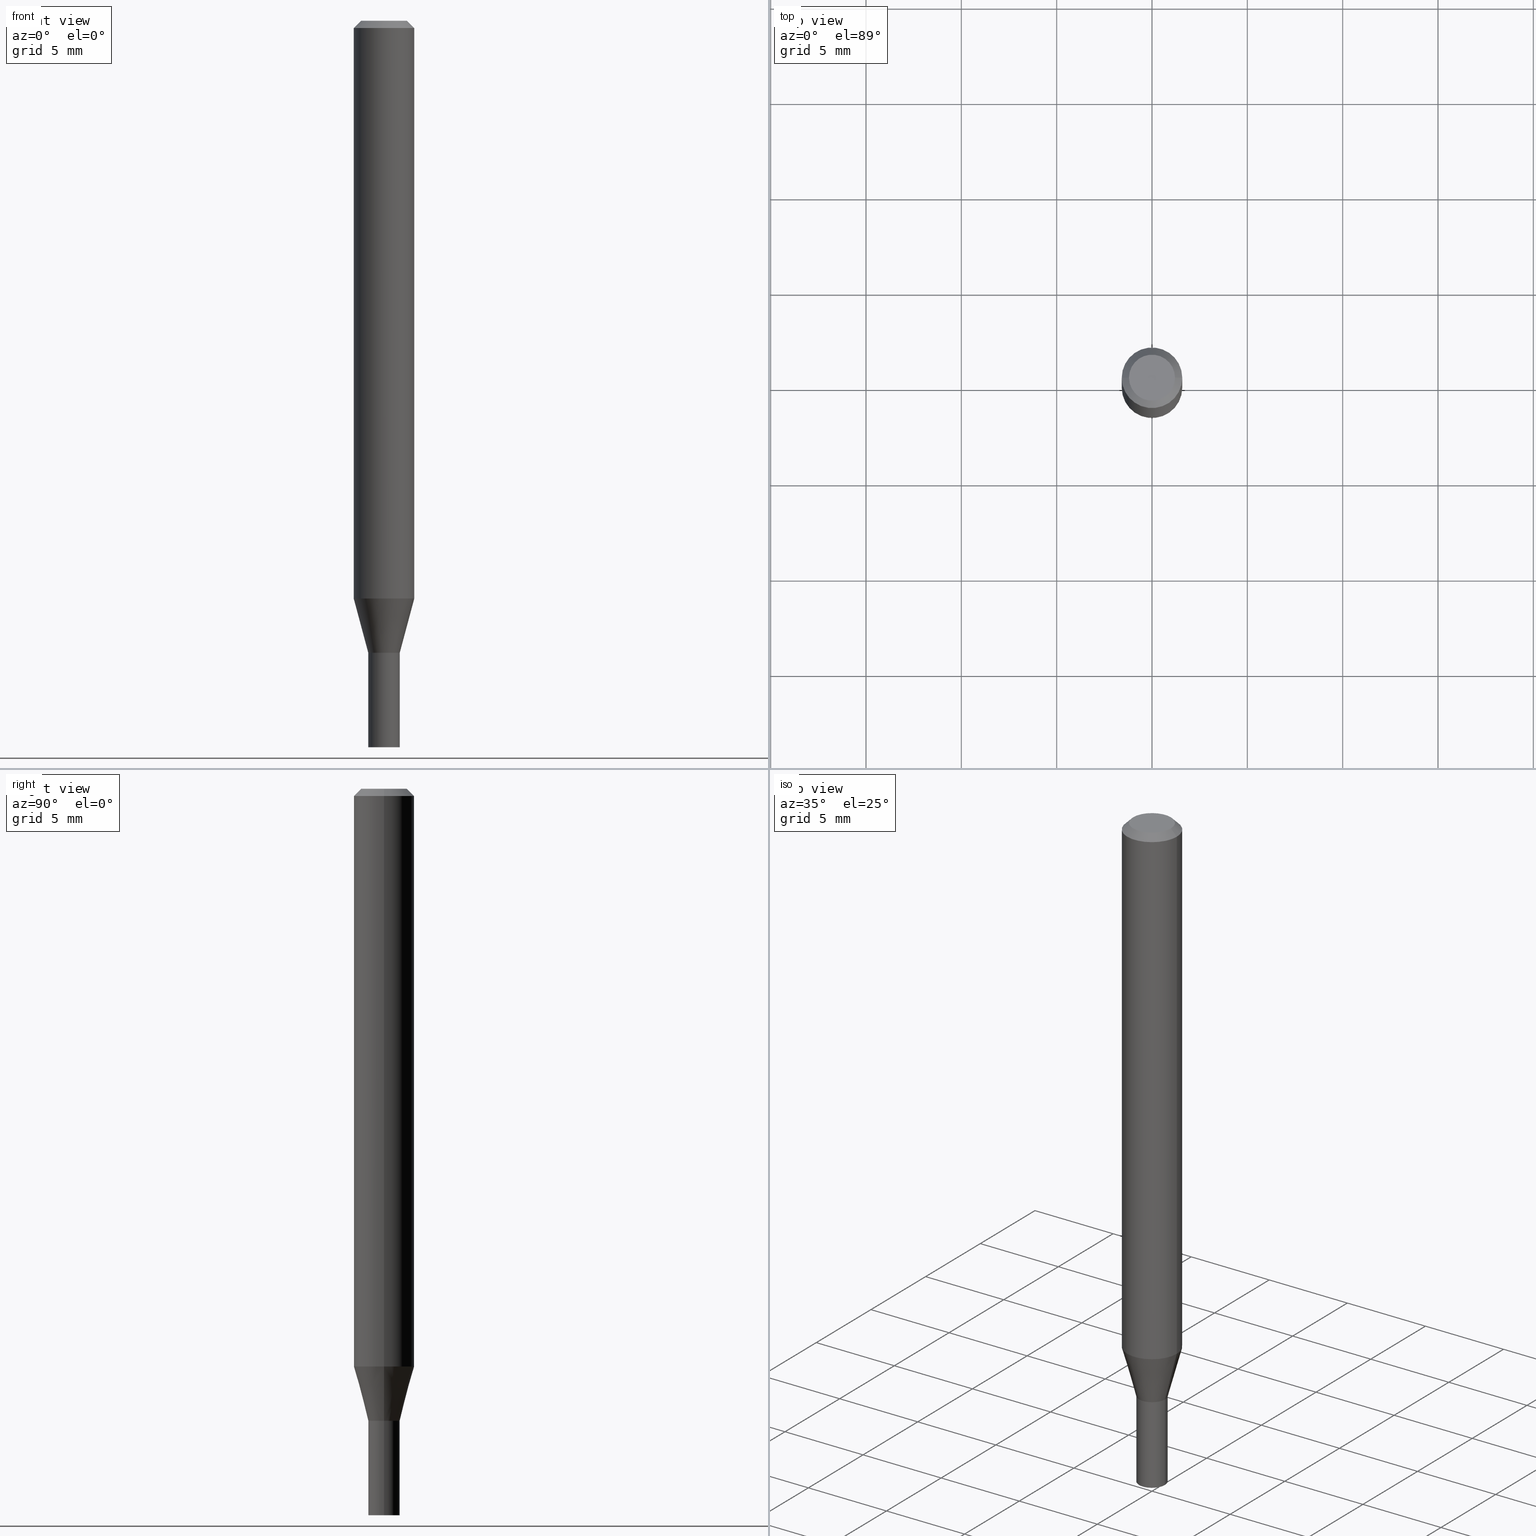
[diagram: canonical four-view strip — front | top / right | iso, engineering-drawing reading convention]
A machine part, canonical four-view strip (front | top / right | iso — engineering-drawing reading convention). The complete STEP part file that produces these views, byte-faithful:
ISO-10303-21;
HEADER;
FILE_DESCRIPTION (( 'STEP AP203' ),
    '1' );
FILE_NAME ('04168.STEP',
    '2024-03-14T17:10:26',
    ( '' ),
    ( '' ),
    'SwSTEP 2.0',
    'SolidWorks 2023',
    '' );
FILE_SCHEMA (( 'CONFIG_CONTROL_DESIGN' ));
ENDSEC;

DATA;
#1 = APPROVAL_STATUS ( 'not_yet_approved' ) ;
#2 = ORIENTED_EDGE ( 'NONE', *, *, #184, .F. ) ;
#3 = ORIENTED_EDGE ( 'NONE', *, *, #453, .F. ) ;
#4 = AXIS2_PLACEMENT_3D ( 'NONE', #66, #348, #244 ) ;
#5 = PERSON_AND_ORGANIZATION ( #230, #219 ) ;
#6 = APPROVAL ( #434, 'UNSPECIFIED' ) ;
#7 = LINE ( 'NONE', #113, #186 ) ;
#8 = ORIENTED_EDGE ( 'NONE', *, *, #188, .T. ) ;
#9 = EDGE_LOOP ( 'NONE', ( #221, #338 ) ) ;
#10 = VERTEX_POINT ( 'NONE', #361 ) ;
#11 = EDGE_CURVE ( 'NONE', #366, #335, #135, .T. ) ;
#12 = CIRCLE ( 'NONE', #288, 0.06250000000000000000 ) ;
#13 = EDGE_CURVE ( 'NONE', #259, #10, #7, .T. ) ;
#14 = VERTEX_POINT ( 'NONE', #154 ) ;
#15 = DIRECTION ( 'NONE',  ( -2.445468806185136597E-29, 3.491481338843145583E-15, 1.000000000000000000 ) ) ;
#16 = ORIENTED_EDGE ( 'NONE', *, *, #295, .T. ) ;
#17 = DIRECTION ( 'NONE',  ( 2.438088387897960049E-29, -3.491481338843145188E-15, -1.000000000000000000 ) ) ;
#18 = ADVANCED_FACE ( 'NONE', ( #293 ), #266, .T. ) ;
#19 = VERTEX_POINT ( 'NONE', #86 ) ;
#20 = ORIENTED_EDGE ( 'NONE', *, *, #131, .F. ) ;
#21 = LINE ( 'NONE', #375, #240 ) ;
#22 = CONICAL_SURFACE ( 'NONE', #80, 0.06250000000000000000, 0.7853981633974401744 ) ;
#23 = DIRECTION ( 'NONE',  ( -2.445468806185136597E-29, 3.491481338843145583E-15, 1.000000000000000000 ) ) ;
#24 = LINE ( 'NONE', #452, #202 ) ;
#25 = DIRECTION ( 'NONE',  ( -2.445468806185136597E-29, 3.491481338843145583E-15, 1.000000000000000000 ) ) ;
#26 = CARTESIAN_POINT ( 'NONE',  ( 3.668203209277705088E-31, -5.237222008264718399E-17, -0.01499999999999999944 ) ) ;
#27 = AXIS2_PLACEMENT_3D ( 'NONE', #54, #129, #273 ) ;
#28 = CARTESIAN_POINT ( 'NONE',  ( -0.03249999999999977907, 2.309263891220309906E-16, -1.598653904332833547E-30 ) ) ;
#29 = DIRECTION ( 'NONE',  ( -1.000000000000000000, 6.982962677686266711E-15, 0.000000000000000000 ) ) ;
#30 = CARTESIAN_POINT ( 'NONE',  ( 3.191336792071602564E-29, -4.556383147190304175E-15, -1.304999999999999938 ) ) ;
#31 = APPROVAL_DATE_TIME ( #350, #36 ) ;
#32 = DIRECTION ( 'NONE',  ( 2.438088387897960049E-29, -3.491481338843145188E-15, -1.000000000000000000 ) ) ;
#33 = PERSON_AND_ORGANIZATION_ROLE ( 'creator' ) ;
#34 = ORIENTED_EDGE ( 'NONE', *, *, #95, .F. ) ;
#35 = EDGE_LOOP ( 'NONE', ( #42, #147, #370, #44 ) ) ;
#36 = APPROVAL ( #1, 'UNSPECIFIED' ) ;
#37 = AXIS2_PLACEMENT_3D ( 'NONE', #339, #307, #132 ) ;
#38 = DIRECTION ( 'NONE',  ( 1.000000000000000000, -6.982962677686267499E-15, 4.852736867747366768E-29 ) ) ;
#39 = LOCAL_TIME ( 13, 10, 26.00000000000000000, #425 ) ;
#40 = EDGE_CURVE ( 'NONE', #118, #182, #21, .T. ) ;
#41 = ORIENTED_EDGE ( 'NONE', *, *, #372, .F. ) ;
#42 = ORIENTED_EDGE ( 'NONE', *, *, #133, .F. ) ;
#43 = EDGE_CURVE ( 'NONE', #356, #19, #12, .T. ) ;
#44 = ORIENTED_EDGE ( 'NONE', *, *, #291, .T. ) ;
#45 = ORIENTED_EDGE ( 'NONE', *, *, #248, .T. ) ;
#46 = ORIENTED_EDGE ( 'NONE', *, *, #402, .T. ) ;
#47 = CARTESIAN_POINT ( 'NONE',  ( 0.000000000000000000, 0.000000000000000000, 0.000000000000000000 ) ) ;
#48 = LOCAL_TIME ( 13, 10, 26.00000000000000000, #422 ) ;
#49 = EDGE_LOOP ( 'NONE', ( #257, #41 ) ) ;
#50 = DIRECTION ( 'NONE',  ( 1.000000000000000000, -6.982962677686266711E-15, 0.000000000000000000 ) ) ;
#51 = CARTESIAN_POINT ( 'NONE',  ( 0.03249999999999991784, -4.783329434215109105E-15, -1.305000000000000160 ) ) ;
#52 = EDGE_LOOP ( 'NONE', ( #302, #292, #325, #3 ) ) ;
#53 = DIRECTION ( 'NONE',  ( 1.000000000000000000, -6.982962677686270655E-15, 0.000000000000000000 ) ) ;
#54 = CARTESIAN_POINT ( 'NONE',  ( 0.000000000000000000, 0.000000000000000000, 0.000000000000000000 ) ) ;
#55 = FACE_OUTER_BOUND ( 'NONE', #49, .T. ) ;
#56 = CONICAL_SURFACE ( 'NONE', #322, 0.03200000000000000067, 0.7853981633974739252 ) ;
#57 = VECTOR ( 'NONE', #71, 39.37007874015748143 ) ;
#58 = DIRECTION ( 'NONE',  ( -2.445468806185136597E-29, 3.491481338843145583E-15, 1.000000000000000000 ) ) ;
#59 = ADVANCED_FACE ( 'NONE', ( #264 ), #445, .T. ) ;
#60 =( LENGTH_UNIT ( ) NAMED_UNIT ( * ) SI_UNIT ( $, .METRE. ) );
#61 = DIRECTION ( 'NONE',  ( 1.000000000000000000, -6.982962677686268288E-15, 4.876176775795936353E-29 ) ) ;
#62 = DIMENSIONAL_EXPONENTS ( 1.000000000000000000, 0.000000000000000000, 0.000000000000000000, 0.000000000000000000, 0.000000000000000000, 0.000000000000000000, 0.000000000000000000 ) ;
#63 = PLANE ( 'NONE',  #191 ) ;
#64 = AXIS2_PLACEMENT_3D ( 'NONE', #443, #203, #192 ) ;
#65 = SECURITY_CLASSIFICATION ( '', '', #107 ) ;
#66 = CARTESIAN_POINT ( 'NONE',  ( 3.191336792071603685E-29, -4.556383147190305752E-15, -1.305000000000000160 ) ) ;
#67 = EDGE_CURVE ( 'NONE', #332, #10, #94, .T. ) ;
#68 = DIRECTION ( 'NONE',  ( -2.445468806185136597E-29, 3.491481338843145583E-15, 1.000000000000000000 ) ) ;
#69 = APPROVAL_ROLE ( '' ) ;
#70 = FACE_OUTER_BOUND ( 'NONE', #194, .T. ) ;
#71 = DIRECTION ( 'NONE',  ( 0.7071067811865656694, -2.468850131082446387E-15, 0.7071067811865294761 ) ) ;
#72 = VECTOR ( 'NONE', #415, 39.37007874015748143 ) ;
#73 = AXIS2_PLACEMENT_3D ( 'NONE', #421, #101, #245 ) ;
#74 = ORIENTED_EDGE ( 'NONE', *, *, #382, .F. ) ;
#75 = DATE_TIME_ROLE ( 'classification_date' ) ;
#76 = ORIENTED_EDGE ( 'NONE', *, *, #382, .T. ) ;
#77 = EDGE_CURVE ( 'NONE', #121, #14, #233, .T. ) ;
#78 = EDGE_CURVE ( 'NONE', #255, #118, #207, .T. ) ;
#79 = APPROVAL_ROLE ( '' ) ;
#80 = AXIS2_PLACEMENT_3D ( 'NONE', #26, #319, #29 ) ;
#81 = ORIENTED_EDGE ( 'NONE', *, *, #95, .T. ) ;
#82 = AXIS2_PLACEMENT_3D ( 'NONE', #464, #109, #250 ) ;
#83 = ORIENTED_EDGE ( 'NONE', *, *, #40, .F. ) ;
#84 = PLANE ( 'NONE',  #462 ) ;
#85 = CARTESIAN_POINT ( 'NONE',  ( 0.03250000000000000111, -5.464168295289522318E-15, -1.500000000000000222 ) ) ;
#86 = CARTESIAN_POINT ( 'NONE',  ( -0.06250000000000000000, -1.664832687532795300E-15, -0.01499999999999999944 ) ) ;
#87 = DIRECTION ( 'NONE',  ( 1.000000000000000000, -6.982962677686271444E-15, 0.000000000000000000 ) ) ;
#88 = EDGE_CURVE ( 'NONE', #182, #294, #405, .T. ) ;
#89 = DIRECTION ( 'NONE',  ( 1.000000000000000000, -6.982962677686258033E-15, 0.000000000000000000 ) ) ;
#90 = DIRECTION ( 'NONE',  ( 0.000000000000000000, 0.000000000000000000, 1.000000000000000000 ) ) ;
#91 = EDGE_CURVE ( 'NONE', #14, #19, #401, .T. ) ;
#92 = DIRECTION ( 'NONE',  ( 1.000000000000000000, -6.982962677686276177E-15, 0.000000000000000000 ) ) ;
#93 = FACE_OUTER_BOUND ( 'NONE', #163, .T. ) ;
#94 = CIRCLE ( 'NONE', #148, 0.03250000000000000111 ) ;
#95 = EDGE_CURVE ( 'NONE', #294, #182, #296, .T. ) ;
#96 = DIRECTION ( 'NONE',  ( -2.445468806185136597E-29, 3.491481338843145583E-15, 1.000000000000000000 ) ) ;
#97 = PERSON_AND_ORGANIZATION ( #230, #219 ) ;
#98 = CARTESIAN_POINT ( 'NONE',  ( 0.03250000000000000111, -4.783329434215109105E-15, -1.305000000000000160 ) ) ;
#99 = APPLICATION_CONTEXT ( 'configuration controlled 3d designs of mechanical parts and assemblies' ) ;
#100 = DIRECTION ( 'NONE',  ( 1.000000000000000000, -6.982962677686265922E-15, 4.876176775795935232E-29 ) ) ;
#101 = DIRECTION ( 'NONE',  ( 2.445468806185136597E-29, -3.491481338843145583E-15, -1.000000000000000000 ) ) ;
#102 = APPROVAL_ROLE ( '' ) ;
#103 = AXIS2_PLACEMENT_3D ( 'NONE', #166, #448, #128 ) ;
#104 = PRODUCT_DEFINITION_FORMATION_WITH_SPECIFIED_SOURCE ( 'ANY', '', #397, .NOT_KNOWN. ) ;
#105 = CARTESIAN_POINT ( 'NONE',  ( 0.04749999999999999362, -4.035134999187574186E-16, 2.469815280770085059E-16 ) ) ;
#106 = CARTESIAN_POINT ( 'NONE',  ( 3.191336792071602564E-29, -4.556383147190304175E-15, -1.304999999999999938 ) ) ;
#107 = SECURITY_CLASSIFICATION_LEVEL ( 'unclassified' ) ;
#108 = EDGE_LOOP ( 'NONE', ( #400, #218, #127, #20 ) ) ;
#109 = DIRECTION ( 'NONE',  ( -2.445468806185136597E-29, 3.491481338843145583E-15, 1.000000000000000000 ) ) ;
#110 = COORDINATED_UNIVERSAL_TIME_OFFSET ( 5, 0, .BEHIND. ) ;
#111 = VECTOR ( 'NONE', #403, 39.37007874015748143 ) ;
#112 = CC_DESIGN_SECURITY_CLASSIFICATION ( #65, ( #104 ) ) ;
#113 = CARTESIAN_POINT ( 'NONE',  ( -0.03250000000000000111, 2.309263891220325683E-16, -1.598653904332844407E-30 ) ) ;
#114 = CALENDAR_DATE ( 2024, 14, 3 ) ;
#115 = ORIENTED_EDGE ( 'NONE', *, *, #43, .T. ) ;
#116 = EDGE_LOOP ( 'NONE', ( #83, #398, #46, #123 ) ) ;
#117 = VERTEX_POINT ( 'NONE', #85 ) ;
#118 = VERTEX_POINT ( 'NONE', #451 ) ;
#119 = DIRECTION ( 'NONE',  ( -1.000000000000000000, 6.982962677686265922E-15, -4.876176775795935793E-29 ) ) ;
#120 = DIRECTION ( 'NONE',  ( -2.445468806185136597E-29, 3.491481338843145583E-15, 1.000000000000000000 ) ) ;
#121 = VERTEX_POINT ( 'NONE', #408 ) ;
#122 = DIRECTION ( 'NONE',  ( 1.000000000000000000, -6.982962677686273810E-15, 0.000000000000000000 ) ) ;
#123 = ORIENTED_EDGE ( 'NONE', *, *, #88, .F. ) ;
#124 = DIRECTION ( 'NONE',  ( 1.000000000000000000, -6.982962677686265922E-15, 4.876176775795935232E-29 ) ) ;
#125 = CC_DESIGN_DATE_AND_TIME_ASSIGNMENT ( #428, #181, ( #389 ) ) ;
#126 = CONICAL_SURFACE ( 'NONE', #354, 0.03200000000000000067, 0.7853981633974739252 ) ;
#127 = ORIENTED_EDGE ( 'NONE', *, *, #130, .T. ) ;
#128 = DIRECTION ( 'NONE',  ( 1.000000000000000000, -6.982962677686258033E-15, 0.000000000000000000 ) ) ;
#129 = DIRECTION ( 'NONE',  ( -2.445468806185136597E-29, 3.491481338843145583E-15, 1.000000000000000000 ) ) ;
#130 = EDGE_CURVE ( 'NONE', #117, #332, #368, .T. ) ;
#131 = EDGE_CURVE ( 'NONE', #10, #332, #387, .T. ) ;
#132 = DIRECTION ( 'NONE',  ( 1.000000000000000000, -6.982962677686271444E-15, 0.000000000000000000 ) ) ;
#133 = EDGE_CURVE ( 'NONE', #335, #356, #272, .T. ) ;
#134 = DIRECTION ( 'NONE',  ( -2.445468806185136597E-29, 3.491481338843145583E-15, 1.000000000000000000 ) ) ;
#135 = CIRCLE ( 'NONE', #386, 0.04749999999999999362 ) ;
#136 = FACE_OUTER_BOUND ( 'NONE', #189, .T. ) ;
#137 = DIRECTION ( 'NONE',  ( -2.445468806185136597E-29, 3.491481338843145583E-15, 1.000000000000000000 ) ) ;
#138 = DIRECTION ( 'NONE',  ( 1.000000000000000000, -6.982962677686265922E-15, 4.876176775795935793E-29 ) ) ;
#139 = FACE_OUTER_BOUND ( 'NONE', #160, .T. ) ;
#140 = PERSON_AND_ORGANIZATION_ROLE ( 'classification_officer' ) ;
#141 = AXIS2_PLACEMENT_3D ( 'NONE', #268, #17, #119 ) ;
#142 = CIRCLE ( 'NONE', #446, 0.03250000000000000111 ) ;
#143 = CYLINDRICAL_SURFACE ( 'NONE', #157, 0.03249999999999977907 ) ;
#144 = FACE_OUTER_BOUND ( 'NONE', #52, .T. ) ;
#145 = EDGE_CURVE ( 'NONE', #427, #14, #377, .T. ) ;
#146 = ADVANCED_FACE ( 'NONE', ( #232 ), #274, .F. ) ;
#147 = ORIENTED_EDGE ( 'NONE', *, *, #11, .F. ) ;
#148 = AXIS2_PLACEMENT_3D ( 'NONE', #169, #23, #89 ) ;
#149 = CIRCLE ( 'NONE', #159, 0.03250000000000000111 ) ;
#150 = DIRECTION ( 'NONE',  ( -2.445468806185136597E-29, 3.491481338843145583E-15, 1.000000000000000000 ) ) ;
#151 = COORDINATED_UNIVERSAL_TIME_OFFSET ( 5, 0, .BEHIND. ) ;
#152 = ADVANCED_FACE ( 'NONE', ( #55 ), #407, .F. ) ;
#153 = ORIENTED_EDGE ( 'NONE', *, *, #402, .F. ) ;
#154 = CARTESIAN_POINT ( 'NONE',  ( -0.06250000000000000000, -3.721382364833005349E-15, -1.193038475772933760 ) ) ;
#155 = ORIENTED_EDGE ( 'NONE', *, *, #91, .F. ) ;
#156 = EDGE_CURVE ( 'NONE', #436, #427, #167, .T. ) ;
#157 = AXIS2_PLACEMENT_3D ( 'NONE', #313, #351, #61 ) ;
#158 = ORIENTED_EDGE ( 'NONE', *, *, #13, .T. ) ;
#159 = AXIS2_PLACEMENT_3D ( 'NONE', #171, #239, #317 ) ;
#160 = EDGE_LOOP ( 'NONE', ( #267, #165, #115, #254 ) ) ;
#161 = CARTESIAN_POINT ( 'NONE',  ( 0.03250000000000000111, -2.269462870248036484E-16, 1.584757452133678993E-30 ) ) ;
#162 = ADVANCED_FACE ( 'NONE', ( #381 ), #84, .F. ) ;
#163 = EDGE_LOOP ( 'NONE', ( #155, #45, #365, #249 ) ) ;
#164 = CARTESIAN_POINT ( 'NONE',  ( 3.191336792071603685E-29, -4.556383147190305752E-15, -1.305000000000000160 ) ) ;
#165 = ORIENTED_EDGE ( 'NONE', *, *, #133, .T. ) ;
#166 = CARTESIAN_POINT ( 'NONE',  ( 3.191336792071603685E-29, -4.556383147190305752E-15, -1.305000000000000160 ) ) ;
#167 = CIRCLE ( 'NONE', #456, 0.03249999999999991784 ) ;
#168 = CC_DESIGN_APPROVAL ( #6, ( #65 ) ) ;
#169 = CARTESIAN_POINT ( 'NONE',  ( 3.191336792071603685E-29, -4.556383147190305752E-15, -1.305000000000000160 ) ) ;
#170 = CARTESIAN_POINT ( 'NONE',  ( -0.03249999999999991784, -4.325456758068273381E-15, -1.305000000000000160 ) ) ;
#171 = CARTESIAN_POINT ( 'NONE',  ( 3.668203209277704895E-29, -5.237222008264718177E-15, -1.500000000000000222 ) ) ;
#172 = CLOSED_SHELL ( 'NONE', ( #290, #152, #59, #162 ) ) ;
#173 = AXIS2_PLACEMENT_3D ( 'NONE', #390, #96, #100 ) ;
#174 = AXIS2_PLACEMENT_3D ( 'NONE', #459, #68, #280 ) ;
#175 = CARTESIAN_POINT ( 'NONE',  ( 0.000000000000000000, 0.000000000000000000, 0.000000000000000000 ) ) ;
#176 = DIRECTION ( 'NONE',  ( -2.445468806185136597E-29, 3.491481338843145583E-15, 1.000000000000000000 ) ) ;
#177 = FACE_OUTER_BOUND ( 'NONE', #330, .T. ) ;
#178 = ADVANCED_FACE ( 'NONE', ( #321 ), #22, .T. ) ;
#179 = LOCAL_TIME ( 13, 10, 26.00000000000000000, #327 ) ;
#180 = LINE ( 'NONE', #323, #241 ) ;
#181 = DATE_TIME_ROLE ( 'creation_date' ) ;
#182 = VERTEX_POINT ( 'NONE', #392 ) ;
#183 = PERSON_AND_ORGANIZATION ( #230, #219 ) ;
#184 = EDGE_CURVE ( 'NONE', #427, #182, #209, .T. ) ;
#185 = CALENDAR_DATE ( 2024, 14, 3 ) ;
#186 = VECTOR ( 'NONE', #359, 39.37007874015748143 ) ;
#187 = CLOSED_SHELL ( 'NONE', ( #238, #413, #424, #394, #362, #18, #466, #178, #146, #223, #208, #229 ) ) ;
#188 = EDGE_CURVE ( 'NONE', #436, #294, #461, .T. ) ;
#189 = EDGE_LOOP ( 'NONE', ( #367, #435, #226, #299 ) ) ;
#190 = ORIENTED_EDGE ( 'NONE', *, *, #11, .T. ) ;
#191 = AXIS2_PLACEMENT_3D ( 'NONE', #106, #460, #138 ) ;
#192 = DIRECTION ( 'NONE',  ( 1.000000000000000000, -6.982962677686273810E-15, 0.000000000000000000 ) ) ;
#193 = APPROVAL_PERSON_ORGANIZATION ( #212, #36, #79 ) ;
#194 = EDGE_LOOP ( 'NONE', ( #298, #300 ) ) ;
#195 = DIRECTION ( 'NONE',  ( -2.445468806185136597E-29, 3.491481338843145583E-15, 1.000000000000000000 ) ) ;
#196 = CARTESIAN_POINT ( 'NONE',  ( 0.000000000000000000, 0.000000000000000000, 0.000000000000000000 ) ) ;
#197 = ORIENTED_EDGE ( 'NONE', *, *, #429, .T. ) ;
#198 = DIRECTION ( 'NONE',  ( -0.7071067811865656694, 7.493145998870420424E-15, 0.7071067811865294761 ) ) ;
#199 = CARTESIAN_POINT ( 'NONE',  ( 0.06250000000000000000, -4.811533449433679005E-16, -0.01499999999999999944 ) ) ;
#200 = AXIS2_PLACEMENT_3D ( 'NONE', #222, #439, #53 ) ;
#201 =( NAMED_UNIT ( * ) PLANE_ANGLE_UNIT ( ) SI_UNIT ( $, .RADIAN. ) );
#202 = VECTOR ( 'NONE', #411, 39.37007874015748854 ) ;
#203 = DIRECTION ( 'NONE',  ( -2.445468806185136597E-29, 3.491481338843145583E-15, 1.000000000000000000 ) ) ;
#204 =( CONVERSION_BASED_UNIT ( 'INCH', #225 ) LENGTH_UNIT ( ) NAMED_UNIT ( #62 ) );
#205 = CARTESIAN_POINT ( 'NONE',  ( 2.269462870248355479E-16, 0.03249999999999544226, -1.305000000000000160 ) ) ;
#206 = DIRECTION ( 'NONE',  ( -1.000000000000000000, 6.982962677686265922E-15, -4.876176775795935793E-29 ) ) ;
#207 = CIRCLE ( 'NONE', #37, 0.03200000000000000067 ) ;
#208 = ADVANCED_FACE ( 'NONE', ( #278 ), #56, .T. ) ;
#209 = LINE ( 'NONE', #28, #72 ) ;
#210 = DIRECTION ( 'NONE',  ( -2.445468806185136597E-29, 3.491481338843145583E-15, 1.000000000000000000 ) ) ;
#211 = DIRECTION ( 'NONE',  ( -2.445468806185136877E-29, 3.491481338843145188E-15, 1.000000000000000000 ) ) ;
#212 = PERSON_AND_ORGANIZATION ( #230, #219 ) ;
#213 = VECTOR ( 'NONE', #211, 39.37007874015748143 ) ;
#214 = CONICAL_SURFACE ( 'NONE', #4, 0.03249999999999991784, 0.2617993877991499074 ) ;
#215 = ORIENTED_EDGE ( 'NONE', *, *, #156, .F. ) ;
#216 = PERSON_AND_ORGANIZATION ( #230, #219 ) ;
#217 = ORIENTED_EDGE ( 'NONE', *, *, #67, .F. ) ;
#218 = ORIENTED_EDGE ( 'NONE', *, *, #372, .T. ) ;
#219 = ORGANIZATION ( 'UNSPECIFIED', 'UNSPECIFIED', '' ) ;
#220 = ORIENTED_EDGE ( 'NONE', *, *, #145, .F. ) ;
#221 = ORIENTED_EDGE ( 'NONE', *, *, #67, .T. ) ;
#222 = CARTESIAN_POINT ( 'NONE',  ( 2.917538377081371069E-29, -4.165471574683068754E-15, -1.193038475772933760 ) ) ;
#223 = ADVANCED_FACE ( 'NONE', ( #70 ), #63, .F. ) ;
#224 = DIRECTION ( 'NONE',  ( -0.2588190451025211836, 5.211531920934547886E-15, 0.9659258262890679791 ) ) ;
#225 = LENGTH_MEASURE_WITH_UNIT ( LENGTH_MEASURE( 0.02539999999999999897 ), #60 );
#226 = ORIENTED_EDGE ( 'NONE', *, *, #88, .T. ) ;
#227 = APPLICATION_CONTEXT ( 'configuration controlled 3d designs of mechanical parts and assemblies' ) ;
#228 = CARTESIAN_POINT ( 'NONE',  ( -0.06250000000000000000, 4.440892098500626162E-16, -3.074334431409316114E-30 ) ) ;
#229 = ADVANCED_FACE ( 'NONE', ( #177 ), #143, .F. ) ;
#230 = PERSON ( 'UNSPECIFIED', 'UNSPECIFIED', 'UNSPECIFIED', ('UNSPECIFIED'), ('UNSPECIFIED'), ('UNSPECIFIED') ) ;
#231 = PERSON_AND_ORGANIZATION ( #230, #219 ) ;
#232 = FACE_OUTER_BOUND ( 'NONE', #447, .T. ) ;
#233 = CIRCLE ( 'NONE', #200, 0.06250000000000000000 ) ;
#234 = DESIGN_CONTEXT ( 'detailed design', #99, 'design' ) ;
#235 = DIRECTION ( 'NONE',  ( -2.445468806185136597E-29, 3.491481338843145583E-15, 1.000000000000000000 ) ) ;
#236 = APPROVAL_STATUS ( 'not_yet_approved' ) ;
#237 = CARTESIAN_POINT ( 'NONE',  ( 0.03249999999999964723, -4.781583693545685235E-15, -1.304500000000000215 ) ) ;
#238 = ADVANCED_FACE ( 'NONE', ( #136 ), #454, .F. ) ;
#239 = DIRECTION ( 'NONE',  ( -2.445468806185136597E-29, 3.491481338843145583E-15, 1.000000000000000000 ) ) ;
#240 = VECTOR ( 'NONE', #198, 39.37007874015748143 ) ;
#241 = VECTOR ( 'NONE', #465, 39.37007874015748854 ) ;
#242 = CC_DESIGN_APPROVAL ( #328, ( #389 ) ) ;
#243 = PERSON_AND_ORGANIZATION ( #230, #219 ) ;
#244 = DIRECTION ( 'NONE',  ( 1.000000000000000000, -6.982962677686276177E-15, 0.000000000000000000 ) ) ;
#245 = DIRECTION ( 'NONE',  ( -1.000000000000000000, 6.982962677686266711E-15, 0.000000000000000000 ) ) ;
#246 = CARTESIAN_POINT ( 'NONE',  ( -0.03250000000000000111, -4.665876188605479199E-15, -1.500000000000000222 ) ) ;
#247 = SHAPE_DEFINITION_REPRESENTATION ( #261, #326 ) ;
#248 = EDGE_CURVE ( 'NONE', #14, #121, #352, .T. ) ;
#249 = ORIENTED_EDGE ( 'NONE', *, *, #291, .F. ) ;
#250 = DIRECTION ( 'NONE',  ( 1.000000000000000000, -6.982962677686266711E-15, 4.876176775795935793E-29 ) ) ;
#251 = AXIS2_PLACEMENT_3D ( 'NONE', #346, #344, #457 ) ;
#252 = APPROVAL_PERSON_ORGANIZATION ( #5, #6, #102 ) ;
#253 = DATE_AND_TIME ( #358, #48 ) ;
#254 = ORIENTED_EDGE ( 'NONE', *, *, #450, .F. ) ;
#255 = VERTEX_POINT ( 'NONE', #283 ) ;
#256 = VECTOR ( 'NONE', #301, 39.37007874015748854 ) ;
#257 = ORIENTED_EDGE ( 'NONE', *, *, #295, .F. ) ;
#258 = MANIFOLD_SOLID_BREP ( 'Body-Move/Copy2[2]', #187 ) ;
#259 = VERTEX_POINT ( 'NONE', #246 ) ;
#260 = DIRECTION ( 'NONE',  ( -2.438088387897960049E-29, 3.491481338843145188E-15, 1.000000000000000000 ) ) ;
#261 = PRODUCT_DEFINITION_SHAPE ( 'NONE', 'NONE',  #389 ) ;
#262 = MANIFOLD_SOLID_BREP ( 'Body-Move/Copy2[1]', #172 ) ;
#263 = DIRECTION ( 'NONE',  ( 1.000000000000000000, -6.982962677686267499E-15, 4.852736867747366768E-29 ) ) ;
#264 = FACE_OUTER_BOUND ( 'NONE', #108, .T. ) ;
#265 = DIRECTION ( 'NONE',  ( -2.445468806185136877E-29, 3.491481338843145188E-15, 1.000000000000000000 ) ) ;
#266 = CONICAL_SURFACE ( 'NONE', #414, 0.03249999999999991784, 0.2617993877991499074 ) ;
#267 = ORIENTED_EDGE ( 'NONE', *, *, #429, .F. ) ;
#268 = CARTESIAN_POINT ( 'NONE',  ( 3.316907271900976096E-16, 0.04749999999999999362, -4.235459955654642541E-17 ) ) ;
#269 = VECTOR ( 'NONE', #265, 39.37007874015748143 ) ;
#270 = CARTESIAN_POINT ( 'NONE',  ( 3.191336792071602564E-29, -4.556383147190304175E-15, -1.304999999999999938 ) ) ;
#271 = ORIENTED_EDGE ( 'NONE', *, *, #156, .T. ) ;
#272 = LINE ( 'NONE', #199, #256 ) ;
#273 = DIRECTION ( 'NONE',  ( 1.000000000000000000, -6.982962677686266711E-15, 4.876176775795935793E-29 ) ) ;
#274 = PLANE ( 'NONE',  #141 ) ;
#275 = DIRECTION ( 'NONE',  ( 1.000000000000000000, -6.982962677686268288E-15, 4.876176775795936353E-29 ) ) ;
#276 = AXIS2_PLACEMENT_3D ( 'NONE', #175, #134, #275 ) ;
#277 = APPLICATION_PROTOCOL_DEFINITION ( 'international standard', 'config_control_design', 1994, #227 ) ;
#278 = FACE_OUTER_BOUND ( 'NONE', #116, .T. ) ;
#279 = EDGE_LOOP ( 'NONE', ( #444, #287, #34, #153 ) ) ;
#280 = DIRECTION ( 'NONE',  ( 1.000000000000000000, -6.982962677686276177E-15, 0.000000000000000000 ) ) ;
#281 = CARTESIAN_POINT ( 'NONE',  ( 3.668203209277705088E-31, -5.237222008264718399E-17, -0.01499999999999999944 ) ) ;
#282 = AXIS2_PLACEMENT_3D ( 'NONE', #47, #195, #124 ) ;
#283 = CARTESIAN_POINT ( 'NONE',  ( 0.03200000000000000067, -4.779837952876265309E-15, -1.304999999999999938 ) ) ;
#284 = APPROVAL_DATE_TIME ( #355, #328 ) ;
#285 = CYLINDRICAL_SURFACE ( 'NONE', #82, 0.06250000000000000000 ) ;
#286 = PERSON_AND_ORGANIZATION ( #230, #219 ) ;
#287 = ORIENTED_EDGE ( 'NONE', *, *, #40, .T. ) ;
#288 = AXIS2_PLACEMENT_3D ( 'NONE', #371, #58, #50 ) ;
#289 = LOCAL_TIME ( 13, 10, 26.00000000000000000, #151 ) ;
#290 = ADVANCED_FACE ( 'NONE', ( #310 ), #417, .T. ) ;
#291 = EDGE_CURVE ( 'NONE', #19, #356, #314, .T. ) ;
#292 = ORIENTED_EDGE ( 'NONE', *, *, #91, .T. ) ;
#293 = FACE_OUTER_BOUND ( 'NONE', #442, .T. ) ;
#294 = VERTEX_POINT ( 'NONE', #237 ) ;
#295 = EDGE_CURVE ( 'NONE', #117, #259, #149, .T. ) ;
#296 = CIRCLE ( 'NONE', #329, 0.03249999999999964723 ) ;
#297 = CIRCLE ( 'NONE', #174, 0.03249999999999991784 ) ;
#298 = ORIENTED_EDGE ( 'NONE', *, *, #78, .F. ) ;
#299 = ORIENTED_EDGE ( 'NONE', *, *, #188, .F. ) ;
#300 = ORIENTED_EDGE ( 'NONE', *, *, #441, .F. ) ;
#301 = DIRECTION ( 'NONE',  ( 0.7071067811865416886, -7.319954787623233957E-15, -0.7071067811865531239 ) ) ;
#302 = ORIENTED_EDGE ( 'NONE', *, *, #77, .T. ) ;
#303 = CARTESIAN_POINT ( 'NONE',  ( 3.191336792071603685E-29, -4.556383147190305752E-15, -1.305000000000000160 ) ) ;
#304 = VECTOR ( 'NONE', #308, 39.37007874015748143 ) ;
#305 = CIRCLE ( 'NONE', #388, 0.04749999999999999362 ) ;
#306 = EDGE_LOOP ( 'NONE', ( #16, #158, #217, #399 ) ) ;
#307 = DIRECTION ( 'NONE',  ( -2.445468806185136597E-29, 3.491481338843145583E-15, 1.000000000000000000 ) ) ;
#308 = DIRECTION ( 'NONE',  ( -2.445468806185136877E-29, 3.491481338843145188E-15, 1.000000000000000000 ) ) ;
#309 = UNCERTAINTY_MEASURE_WITH_UNIT (LENGTH_MEASURE( 1.000000000000000082E-05 ), #204, 'distance_accuracy_value', 'NONE');
#310 = FACE_OUTER_BOUND ( 'NONE', #306, .T. ) ;
#311 = CYLINDRICAL_SURFACE ( 'NONE', #27, 0.06250000000000000000 ) ;
#312 = CC_DESIGN_PERSON_AND_ORGANIZATION_ASSIGNMENT ( #243, #140, ( #65 ) ) ;
#313 = CARTESIAN_POINT ( 'NONE',  ( 0.000000000000000000, 0.000000000000000000, 0.000000000000000000 ) ) ;
#314 = CIRCLE ( 'NONE', #433, 0.06250000000000000000 ) ;
#315 = CONICAL_SURFACE ( 'NONE', #73, 0.06250000000000000000, 0.7853981633974401744 ) ;
#316 = LINE ( 'NONE', #353, #57 ) ;
#317 = DIRECTION ( 'NONE',  ( 1.000000000000000000, -6.982962677686258033E-15, 0.000000000000000000 ) ) ;
#318 = DIRECTION ( 'NONE',  ( 1.000000000000000000, -6.982962677686271444E-15, 0.000000000000000000 ) ) ;
#319 = DIRECTION ( 'NONE',  ( 2.445468806185136597E-29, -3.491481338843145583E-15, -1.000000000000000000 ) ) ;
#320 = FACE_OUTER_BOUND ( 'NONE', #279, .T. ) ;
#321 = FACE_OUTER_BOUND ( 'NONE', #35, .T. ) ;
#322 = AXIS2_PLACEMENT_3D ( 'NONE', #30, #137, #384 ) ;
#323 = CARTESIAN_POINT ( 'NONE',  ( 0.03249999999999991784, -4.783329434215109105E-15, -1.305000000000000160 ) ) ;
#324 = CALENDAR_DATE ( 2024, 14, 3 ) ;
#325 = ORIENTED_EDGE ( 'NONE', *, *, #43, .F. ) ;
#326 = ADVANCED_BREP_SHAPE_REPRESENTATION ( '04168', ( #262, #258, #347 ), #395 ) ;
#327 = COORDINATED_UNIVERSAL_TIME_OFFSET ( 5, 0, .BEHIND. ) ;
#328 = APPROVAL ( #236, 'UNSPECIFIED' ) ;
#329 = AXIS2_PLACEMENT_3D ( 'NONE', #336, #15, #122 ) ;
#330 = EDGE_LOOP ( 'NONE', ( #2, #215, #8, #81 ) ) ;
#331 = EDGE_LOOP ( 'NONE', ( #271, #378, #438, #74 ) ) ;
#332 = VERTEX_POINT ( 'NONE', #98 ) ;
#333 = AXIS2_PLACEMENT_3D ( 'NONE', #270, #409, #87 ) ;
#334 = DIRECTION ( 'NONE',  ( 1.000000000000000000, -6.982962677686276177E-15, 0.000000000000000000 ) ) ;
#335 = VERTEX_POINT ( 'NONE', #105 ) ;
#336 = CARTESIAN_POINT ( 'NONE',  ( 3.190114057668511444E-29, -4.554637406520884249E-15, -1.304500000000000215 ) ) ;
#337 = CC_DESIGN_PERSON_AND_ORGANIZATION_ASSIGNMENT ( #286, #431, ( #104 ) ) ;
#338 = ORIENTED_EDGE ( 'NONE', *, *, #131, .T. ) ;
#339 = CARTESIAN_POINT ( 'NONE',  ( 3.191336792071602564E-29, -4.556383147190304175E-15, -1.304999999999999938 ) ) ;
#340 = DIRECTION ( 'NONE',  ( -2.445468806185136597E-29, 3.491481338843145583E-15, 1.000000000000000000 ) ) ;
#341 = EDGE_CURVE ( 'NONE', #427, #436, #297, .T. ) ;
#342 = PERSON_AND_ORGANIZATION_ROLE ( 'design_owner' ) ;
#343 = DIRECTION ( 'NONE',  ( 1.000000000000000000, -6.982962677686265922E-15, 4.876176775795935793E-29 ) ) ;
#344 = DIRECTION ( 'NONE',  ( -2.445468806185136597E-29, 3.491481338843145583E-15, 1.000000000000000000 ) ) ;
#345 = DIRECTION ( 'NONE',  ( 1.000000000000000000, 0.000000000000000000, 0.000000000000000000 ) ) ;
#346 = CARTESIAN_POINT ( 'NONE',  ( 2.917538377081371069E-29, -4.165471574683068754E-15, -1.193038475772933760 ) ) ;
#347 = AXIS2_PLACEMENT_3D ( 'NONE', #196, #90, #345 ) ;
#348 = DIRECTION ( 'NONE',  ( -2.445468806185136597E-29, 3.491481338843145583E-15, 1.000000000000000000 ) ) ;
#349 = CARTESIAN_POINT ( 'NONE',  ( -0.04749999999999999362, 3.578768372314215436E-16, 2.469815280770035755E-16 ) ) ;
#350 = DATE_AND_TIME ( #185, #289 ) ;
#351 = DIRECTION ( 'NONE',  ( -2.445468806185136597E-29, 3.491481338843145583E-15, 1.000000000000000000 ) ) ;
#352 = CIRCLE ( 'NONE', #251, 0.06250000000000000000 ) ;
#353 = CARTESIAN_POINT ( 'NONE',  ( 0.03200000000000000067, -4.779837952876265309E-15, -1.304999999999999938 ) ) ;
#354 = AXIS2_PLACEMENT_3D ( 'NONE', #418, #176, #318 ) ;
#355 = DATE_AND_TIME ( #360, #39 ) ;
#356 = VERTEX_POINT ( 'NONE', #419 ) ;
#357 = PRODUCT_RELATED_PRODUCT_CATEGORY ( 'detail', '', ( #397 ) ) ;
#358 = CALENDAR_DATE ( 2024, 14, 3 ) ;
#359 = DIRECTION ( 'NONE',  ( -2.445468806185136877E-29, 3.491481338843145188E-15, 1.000000000000000000 ) ) ;
#360 = CALENDAR_DATE ( 2024, 14, 3 ) ;
#361 = CARTESIAN_POINT ( 'NONE',  ( -0.03250000000000000111, -4.665876188605479199E-15, -1.305000000000000160 ) ) ;
#362 = ADVANCED_FACE ( 'NONE', ( #385 ), #214, .T. ) ;
#363 = AXIS2_PLACEMENT_3D ( 'NONE', #410, #260, #343 ) ;
#364 = APPROVAL_PERSON_ORGANIZATION ( #97, #328, #69 ) ;
#365 = ORIENTED_EDGE ( 'NONE', *, *, #453, .T. ) ;
#366 = VERTEX_POINT ( 'NONE', #349 ) ;
#367 = ORIENTED_EDGE ( 'NONE', *, *, #341, .F. ) ;
#368 = LINE ( 'NONE', #161, #304 ) ;
#369 = CIRCLE ( 'NONE', #333, 0.03200000000000000067 ) ;
#370 = ORIENTED_EDGE ( 'NONE', *, *, #450, .T. ) ;
#371 = CARTESIAN_POINT ( 'NONE',  ( 3.668203209277705088E-31, -5.237222008264718399E-17, -0.01499999999999999944 ) ) ;
#372 = EDGE_CURVE ( 'NONE', #259, #117, #142, .T. ) ;
#373 = CC_DESIGN_PERSON_AND_ORGANIZATION_ASSIGNMENT ( #183, #33, ( #389 ) ) ;
#374 = ORIENTED_EDGE ( 'NONE', *, *, #248, .F. ) ;
#375 = CARTESIAN_POINT ( 'NONE',  ( -0.03200000000000000067, -4.329009471747071913E-15, -1.304999999999999938 ) ) ;
#376 = LINE ( 'NONE', #449, #269 ) ;
#377 = LINE ( 'NONE', #170, #379 ) ;
#378 = ORIENTED_EDGE ( 'NONE', *, *, #145, .T. ) ;
#379 = VECTOR ( 'NONE', #224, 39.37007874015748854 ) ;
#380 = CC_DESIGN_APPROVAL ( #36, ( #104 ) ) ;
#381 = FACE_OUTER_BOUND ( 'NONE', #9, .T. ) ;
#382 = EDGE_CURVE ( 'NONE', #436, #121, #180, .T. ) ;
#383 = DIRECTION ( 'NONE',  ( 1.000000000000000000, -6.982962677686266711E-15, 0.000000000000000000 ) ) ;
#384 = DIRECTION ( 'NONE',  ( 1.000000000000000000, -6.982962677686271444E-15, 0.000000000000000000 ) ) ;
#385 = FACE_OUTER_BOUND ( 'NONE', #331, .T. ) ;
#386 = AXIS2_PLACEMENT_3D ( 'NONE', #432, #150, #38 ) ;
#387 = CIRCLE ( 'NONE', #103, 0.03250000000000000111 ) ;
#388 = AXIS2_PLACEMENT_3D ( 'NONE', #440, #120, #263 ) ;
#389 = PRODUCT_DEFINITION ( 'UNKNOWN', '', #104, #234 ) ;
#390 = CARTESIAN_POINT ( 'NONE',  ( 0.000000000000000000, 0.000000000000000000, 0.000000000000000000 ) ) ;
#391 = APPROVAL_DATE_TIME ( #253, #6 ) ;
#392 = CARTESIAN_POINT ( 'NONE',  ( -0.03249999999999964723, -4.323711017398854244E-15, -1.304500000000000215 ) ) ;
#393 = PERSON_AND_ORGANIZATION_ROLE ( 'creator' ) ;
#394 = ADVANCED_FACE ( 'NONE', ( #144 ), #285, .T. ) ;
#395 =( GEOMETRIC_REPRESENTATION_CONTEXT ( 3 ) GLOBAL_UNCERTAINTY_ASSIGNED_CONTEXT ( ( #309 ) ) GLOBAL_UNIT_ASSIGNED_CONTEXT ( ( #204, #201, #455 ) ) REPRESENTATION_CONTEXT ( 'NONE', 'WORKASPACE' ) );
#396 = DATE_AND_TIME ( #114, #463 ) ;
#397 = PRODUCT ( '04168', '04168', '', ( #416 ) ) ;
#398 = ORIENTED_EDGE ( 'NONE', *, *, #441, .T. ) ;
#399 = ORIENTED_EDGE ( 'NONE', *, *, #130, .F. ) ;
#400 = ORIENTED_EDGE ( 'NONE', *, *, #13, .F. ) ;
#401 = LINE ( 'NONE', #228, #111 ) ;
#402 = EDGE_CURVE ( 'NONE', #255, #294, #316, .T. ) ;
#403 = DIRECTION ( 'NONE',  ( -2.445468806185136877E-29, 3.491481338843145188E-15, 1.000000000000000000 ) ) ;
#404 = CC_DESIGN_DATE_AND_TIME_ASSIGNMENT ( #396, #75, ( #65 ) ) ;
#405 = CIRCLE ( 'NONE', #64, 0.03249999999999964723 ) ;
#406 = ORIENTED_EDGE ( 'NONE', *, *, #341, .T. ) ;
#407 = PLANE ( 'NONE',  #363 ) ;
#408 = CARTESIAN_POINT ( 'NONE',  ( 0.06250000000000000000, -4.601906742038460423E-15, -1.193038475772933760 ) ) ;
#409 = DIRECTION ( 'NONE',  ( -2.445468806185136597E-29, 3.491481338843145583E-15, 1.000000000000000000 ) ) ;
#410 = CARTESIAN_POINT ( 'NONE',  ( 3.576687321579069994E-29, -5.368277968210015545E-15, -1.500000000000000222 ) ) ;
#411 = DIRECTION ( 'NONE',  ( -0.7071067811865416886, 2.468850131082196713E-15, -0.7071067811865531239 ) ) ;
#412 = APPLICATION_PROTOCOL_DEFINITION ( 'international standard', 'config_control_design', 1994, #99 ) ;
#413 = ADVANCED_FACE ( 'NONE', ( #320 ), #126, .T. ) ;
#414 = AXIS2_PLACEMENT_3D ( 'NONE', #303, #25, #334 ) ;
#415 = DIRECTION ( 'NONE',  ( -2.445468806185136877E-29, 3.491481338843145188E-15, 1.000000000000000000 ) ) ;
#416 = MECHANICAL_CONTEXT ( 'NONE', #227, 'mechanical' ) ;
#417 = CYLINDRICAL_SURFACE ( 'NONE', #173, 0.03250000000000000111 ) ;
#418 = CARTESIAN_POINT ( 'NONE',  ( 3.191336792071602564E-29, -4.556383147190304175E-15, -1.304999999999999938 ) ) ;
#419 = CARTESIAN_POINT ( 'NONE',  ( 0.06250000000000000000, -4.888073874380388472E-16, -0.01499999999999999944 ) ) ;
#420 = CC_DESIGN_PERSON_AND_ORGANIZATION_ASSIGNMENT ( #216, #393, ( #104 ) ) ;
#421 = CARTESIAN_POINT ( 'NONE',  ( 3.668203209277705088E-31, -5.237222008264718399E-17, -0.01499999999999999944 ) ) ;
#422 = COORDINATED_UNIVERSAL_TIME_OFFSET ( 5, 0, .BEHIND. ) ;
#423 = CARTESIAN_POINT ( 'NONE',  ( 3.668203209277704895E-29, -5.237222008264718177E-15, -1.500000000000000222 ) ) ;
#424 = ADVANCED_FACE ( 'NONE', ( #139 ), #315, .T. ) ;
#425 = COORDINATED_UNIVERSAL_TIME_OFFSET ( 5, 0, .BEHIND. ) ;
#426 = CARTESIAN_POINT ( 'NONE',  ( 0.03249999999999977907, -2.269462870248021693E-16, 1.584757452133668483E-30 ) ) ;
#427 = VERTEX_POINT ( 'NONE', #437 ) ;
#428 = DATE_AND_TIME ( #324, #179 ) ;
#429 = EDGE_CURVE ( 'NONE', #335, #366, #305, .T. ) ;
#430 = DIRECTION ( 'NONE',  ( 1.000000000000000000, -6.982962677686258033E-15, 0.000000000000000000 ) ) ;
#431 = PERSON_AND_ORGANIZATION_ROLE ( 'design_supplier' ) ;
#432 = CARTESIAN_POINT ( 'NONE',  ( -6.039856226162565090E-45, 8.623313963198306787E-31, 2.469815280770059421E-16 ) ) ;
#433 = AXIS2_PLACEMENT_3D ( 'NONE', #281, #235, #383 ) ;
#434 = APPROVAL_STATUS ( 'not_yet_approved' ) ;
#435 = ORIENTED_EDGE ( 'NONE', *, *, #184, .T. ) ;
#436 = VERTEX_POINT ( 'NONE', #51 ) ;
#437 = CARTESIAN_POINT ( 'NONE',  ( -0.03249999999999991784, -4.023419561450638971E-15, -1.305000000000000160 ) ) ;
#438 = ORIENTED_EDGE ( 'NONE', *, *, #77, .F. ) ;
#439 = DIRECTION ( 'NONE',  ( -2.445468806185136597E-29, 3.491481338843145583E-15, 1.000000000000000000 ) ) ;
#440 = CARTESIAN_POINT ( 'NONE',  ( -6.039856226162565090E-45, 8.623313963198306787E-31, 2.469815280770059421E-16 ) ) ;
#441 = EDGE_CURVE ( 'NONE', #118, #255, #369, .T. ) ;
#442 = EDGE_LOOP ( 'NONE', ( #220, #406, #76, #374 ) ) ;
#443 = CARTESIAN_POINT ( 'NONE',  ( 3.190114057668511444E-29, -4.554637406520884249E-15, -1.304500000000000215 ) ) ;
#444 = ORIENTED_EDGE ( 'NONE', *, *, #78, .T. ) ;
#445 = CYLINDRICAL_SURFACE ( 'NONE', #282, 0.03250000000000000111 ) ;
#446 = AXIS2_PLACEMENT_3D ( 'NONE', #423, #210, #430 ) ;
#447 = EDGE_LOOP ( 'NONE', ( #190, #197 ) ) ;
#448 = DIRECTION ( 'NONE',  ( -2.445468806185136597E-29, 3.491481338843145583E-15, 1.000000000000000000 ) ) ;
#449 = CARTESIAN_POINT ( 'NONE',  ( 0.06250000000000000000, -4.364351673553916694E-16, 3.047610484872459871E-30 ) ) ;
#450 = EDGE_CURVE ( 'NONE', #366, #19, #24, .T. ) ;
#451 = CARTESIAN_POINT ( 'NONE',  ( -0.03200000000000000067, -4.326360244572963079E-15, -1.304999999999999938 ) ) ;
#452 = CARTESIAN_POINT ( 'NONE',  ( -0.06250000000000000000, 3.840629472727444916E-16, -0.01499999999999999944 ) ) ;
#453 = EDGE_CURVE ( 'NONE', #121, #356, #376, .T. ) ;
#454 = CYLINDRICAL_SURFACE ( 'NONE', #276, 0.03249999999999977907 ) ;
#455 =( NAMED_UNIT ( * ) SI_UNIT ( $, .STERADIAN. ) SOLID_ANGLE_UNIT ( ) );
#456 = AXIS2_PLACEMENT_3D ( 'NONE', #164, #340, #92 ) ;
#457 = DIRECTION ( 'NONE',  ( 1.000000000000000000, -6.982962677686270655E-15, 0.000000000000000000 ) ) ;
#458 = CC_DESIGN_PERSON_AND_ORGANIZATION_ASSIGNMENT ( #231, #342, ( #397 ) ) ;
#459 = CARTESIAN_POINT ( 'NONE',  ( 3.191336792071603685E-29, -4.556383147190305752E-15, -1.305000000000000160 ) ) ;
#460 = DIRECTION ( 'NONE',  ( -2.438088387897960049E-29, 3.491481338843145188E-15, 1.000000000000000000 ) ) ;
#461 = LINE ( 'NONE', #426, #213 ) ;
#462 = AXIS2_PLACEMENT_3D ( 'NONE', #205, #32, #206 ) ;
#463 = LOCAL_TIME ( 13, 10, 26.00000000000000000, #110 ) ;
#464 = CARTESIAN_POINT ( 'NONE',  ( 0.000000000000000000, 0.000000000000000000, 0.000000000000000000 ) ) ;
#465 = DIRECTION ( 'NONE',  ( 0.2588190451025211836, 1.565188264969622559E-15, 0.9659258262890679791 ) ) ;
#466 = ADVANCED_FACE ( 'NONE', ( #93 ), #311, .T. ) ;
ENDSEC;
END-ISO-10303-21;
